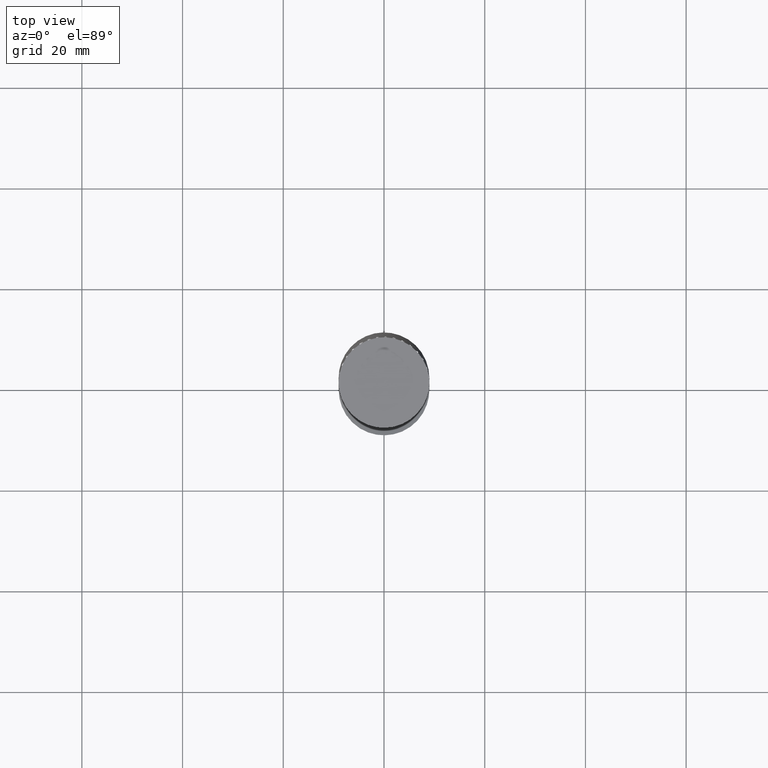
[diagram: clean part render]
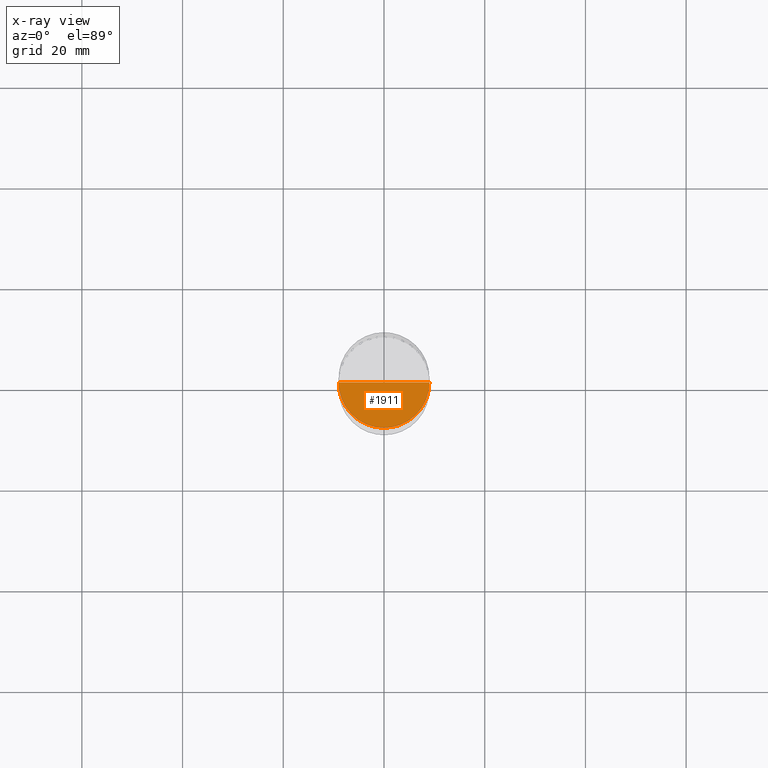
[diagram: x-ray — body ghosted, one internal face saturated and labeled with its STEP entity id]
A machine part, top view, then the same camera in x-ray: the body is ghosted and one INTERNAL B-rep face — a face not visible from any outside direction — is saturated and labeled: STEP entity #1911.
In plain terms, the highlighted face is a freeform B-spline surface patch.
Its self-contained STEP definition (entity closure, byte-faithful):
#1758=CARTESIAN_POINT('',(9.0,0.0,-7.0));
#1762=CARTESIAN_POINT('',(-9.0,0.0,-7.0));
#1763=CARTESIAN_POINT('',(0.0,0.0,-7.0));
#1767=CARTESIAN_POINT('',(-9.0,-9.0,-7.0));
#1768=CARTESIAN_POINT('',(0.0,-9.0,-7.0));
#1769=CARTESIAN_POINT('',(9.0,-9.0,-7.0));
#1896=(
BOUNDED_SURFACE()
B_SPLINE_SURFACE(1,2,(
(#1762,#1767,#1768,#1769,#1758),
(#1763,#1763,#1763,#1763,#1763)
), .UNSPECIFIED.,.F.,.F.,.F.)
B_SPLINE_SURFACE_WITH_KNOTS((2,2),(3,2,3),(
0.0,1.0),(
0.0,0.5,1.0), .UNSPECIFIED.)
GEOMETRIC_REPRESENTATION_ITEM()
RATIONAL_B_SPLINE_SURFACE(((1.0,0.707106781187,1.0,0.707106781187,1.0),
(1.0,0.707106781187,1.0,0.707106781187,1.0)
))
REPRESENTATION_ITEM('')
SURFACE()
);
#1897=(
BOUNDED_CURVE()
B_SPLINE_CURVE(2,(#1758,#1769,#1768,#1767,#1762),.UNSPECIFIED.,.F.,.F.)
B_SPLINE_CURVE_WITH_KNOTS((3,2,3),
(0.0,0.5,1.0),.UNSPECIFIED.)
CURVE()
GEOMETRIC_REPRESENTATION_ITEM()
RATIONAL_B_SPLINE_CURVE((1.0,0.707106781187,1.0,0.707106781187,1.0))
REPRESENTATION_ITEM('')
);
#1898=(
BOUNDED_CURVE()
B_SPLINE_CURVE(1,(#1762,#1763),.UNSPECIFIED.,.F.,.F.)
B_SPLINE_CURVE_WITH_KNOTS((2,2),
(0.0,1.0),.UNSPECIFIED.)
CURVE()
GEOMETRIC_REPRESENTATION_ITEM()
RATIONAL_B_SPLINE_CURVE((1.0,1.0))
REPRESENTATION_ITEM('')
);
#1899=(
BOUNDED_CURVE()
B_SPLINE_CURVE(1,(#1763,#1758),.UNSPECIFIED.,.F.,.F.)
B_SPLINE_CURVE_WITH_KNOTS((2,2),
(0.0,1.0),.UNSPECIFIED.)
CURVE()
GEOMETRIC_REPRESENTATION_ITEM()
RATIONAL_B_SPLINE_CURVE((1.0,1.0))
REPRESENTATION_ITEM('')
);
#1900=VERTEX_POINT('',#1758);
#1901=VERTEX_POINT('',#1762);
#1902=VERTEX_POINT('',#1763);
#1903=EDGE_CURVE('',#1900,#1901,#1897,.T.);
#1904=EDGE_CURVE('',#1901,#1902,#1898,.T.);
#1905=EDGE_CURVE('',#1902,#1900,#1899,.T.);
#1906=ORIENTED_EDGE('',*,*,#1903,.T.);
#1907=ORIENTED_EDGE('',*,*,#1904,.T.);
#1908=ORIENTED_EDGE('',*,*,#1905,.T.);
#1909=EDGE_LOOP('',(#1906,#1907,#1908));
#1910=FACE_OUTER_BOUND('',#1909,.T.);
#1911=ADVANCED_FACE('',(#1910),#1896,.T.);